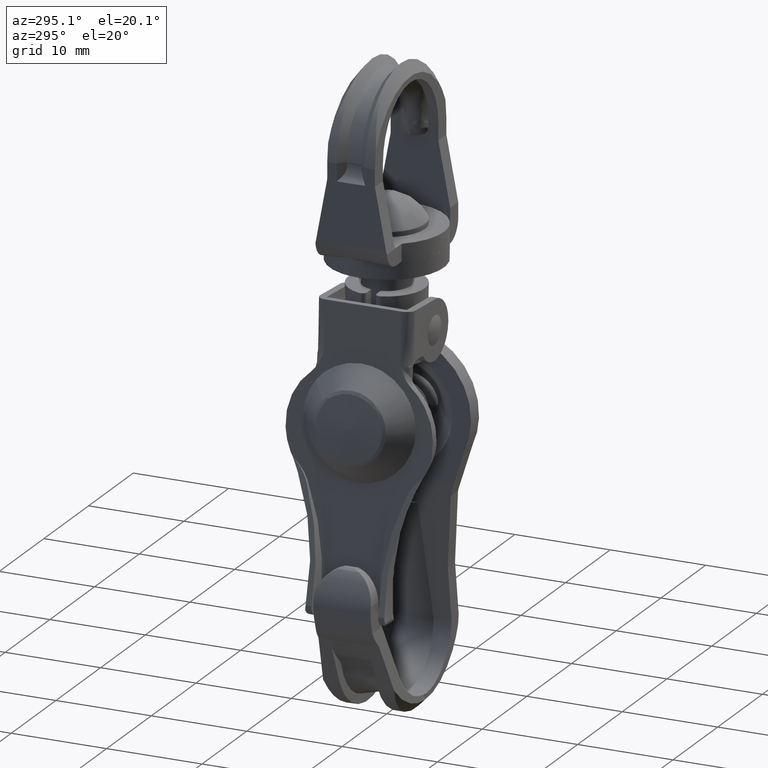
[diagram: clean part render]
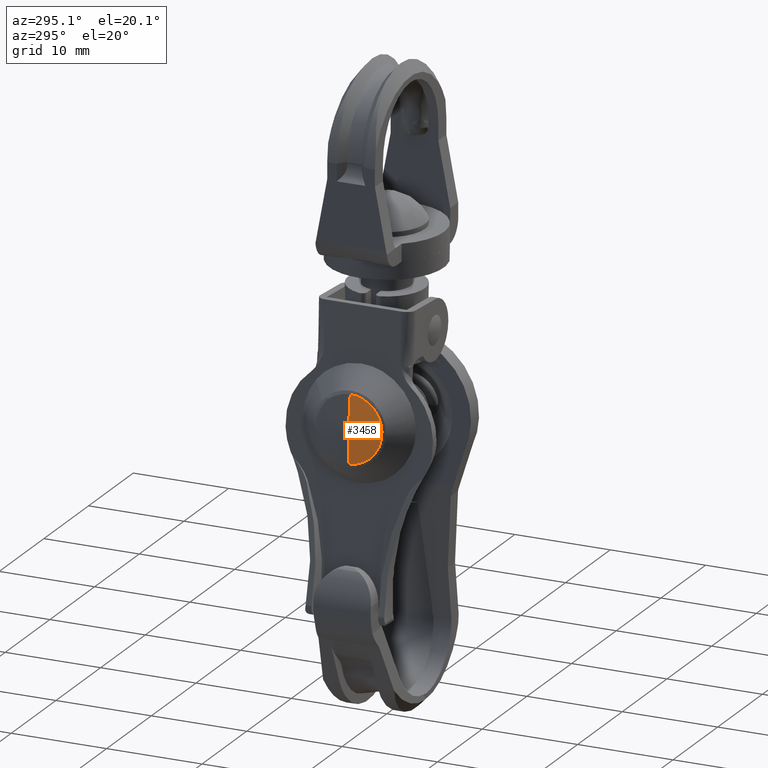
[diagram: same view with one face highlighted and labeled with its STEP entity id]
A machine part, auxiliary view. The second image highlights one B-rep face of the part: STEP entity #3458.
In plain terms, the highlighted face is a freeform B-spline surface patch.
Its self-contained STEP definition (entity closure, byte-faithful):
#2493=CARTESIAN_POINT('',(-7.835021574804739,-1.404637E-016,-11.982552503516050));
#2494=VERTEX_POINT('',#2493);
#2525=CARTESIAN_POINT('',(-7.835021574384678,-2.595404277429626,-6.282185410900057));
#2526=VERTEX_POINT('',#2525);
#2535=CARTESIAN_POINT('',(-7.835021574804739,-1.404637E-016,-11.982552503516050));
#2536=CARTESIAN_POINT('',(-7.835021574828568,-0.348419008680220,-11.982706011859330));
#2537=CARTESIAN_POINT('',(-7.835021574862766,-1.004142779470950,-11.882098519880619));
#2538=CARTESIAN_POINT('',(-7.835021574878999,-1.846992030074514,-11.487628665422870));
#2539=CARTESIAN_POINT('',(-7.835021574868442,-2.436747484635057,-11.002838982162400));
#2540=CARTESIAN_POINT('',(-7.835021574839749,-2.918879328116014,-10.414348578139450));
#2541=CARTESIAN_POINT('',(-7.835021574798509,-3.219707355684711,-9.825008911454040));
#2542=CARTESIAN_POINT('',(-7.835021574742166,-3.398163784062164,-9.170841124201125));
#2543=CARTESIAN_POINT('',(-7.835021574688274,-3.456767600827269,-8.618366553153408));
#2544=CARTESIAN_POINT('',(-7.835021574623317,-3.418557368897708,-8.023306265152964));
#2545=CARTESIAN_POINT('',(-7.835021574560328,-3.294585609612724,-7.502874426334744));
#2546=CARTESIAN_POINT('',(-7.835021574479642,-3.047357665422870,-6.894035753970834));
#2547=CARTESIAN_POINT('',(-7.835021574422758,-2.797337360564127,-6.513988240661466));
#2548=CARTESIAN_POINT('',(-7.835021574384678,-2.595404277429626,-6.282185410900057));
#2549=B_SPLINE_CURVE_WITH_KNOTS('',3,(#2535,#2536,#2537,#2538,#2539,#2540,#2541,#2542,#2543,#2544,#2545,#2546,#2547,#2548),.UNSPECIFIED.,.F.,.U.,(4,1,1,1,1,1,1,1,1,1,1,4),(0.000000097591319,1.045213756927095,1.967506774774630,2.766825270761126,3.320176826878755,4.242391563046670,4.734279134463236,5.349155795290306,5.902517313344400,6.517378208643962,6.947781837420082,7.870021699033574),.UNSPECIFIED.);
#2550=EDGE_CURVE('',#2494,#2526,#2549,.T.);
#2572=CARTESIAN_POINT('',(-7.835021574804739,1.404637E-016,-5.100485496483945));
#2573=VERTEX_POINT('',#2572);
#2583=CARTESIAN_POINT('',(-7.835021574384678,-2.595404277429626,-6.282185410900057));
#2584=CARTESIAN_POINT('',(-7.835021574442168,-2.454637023991371,-6.120468090337438));
#2585=CARTESIAN_POINT('',(-7.835021574566612,-2.087104884099259,-5.770347986868331));
#2586=CARTESIAN_POINT('',(-7.835021574696578,-1.478288668543498,-5.404783425585706));
#2587=CARTESIAN_POINT('',(-7.835021574784340,-0.750392185583337,-5.157861613127837));
#2588=CARTESIAN_POINT('',(-7.835021574804751,-0.275669577491491,-5.100419181528926));
#2589=CARTESIAN_POINT('',(-7.835021574804739,1.404637E-016,-5.100485496483945));
#2590=B_SPLINE_CURVE_WITH_KNOTS('',3,(#2583,#2584,#2585,#2586,#2587,#2588,#2589),.UNSPECIFIED.,.F.,.U.,(4,1,1,1,4),(0.000000032344334,0.643217907970867,1.516143418683828,2.113433090952537,2.940430398307693),.UNSPECIFIED.);
#2591=EDGE_CURVE('',#2526,#2573,#2590,.T.);
#2618=CARTESIAN_POINT('',(-8.007081124188366,0.0,-8.541518999999999));
#2619=VERTEX_POINT('',#2618);
#2620=CARTESIAN_POINT('',(-8.007081124188366,0.0,-8.541518999999999));
#2621=CARTESIAN_POINT('',(-7.835021574804739,1.404637E-016,-5.100485496483945));
#2622=QUASI_UNIFORM_CURVE('',1,(#2620,#2621),.UNSPECIFIED.,.F.,.U.);
#2623=EDGE_CURVE('',#2619,#2573,#2622,.T.);
#2627=CARTESIAN_POINT('',(-8.007081124188366,0.0,-8.541518999999999));
#2628=CARTESIAN_POINT('',(-7.835021574804739,-1.404637E-016,-11.982552503516050));
#2629=QUASI_UNIFORM_CURVE('',1,(#2627,#2628),.UNSPECIFIED.,.F.,.U.);
#2630=EDGE_CURVE('',#2619,#2494,#2629,.T.);
#3434=CARTESIAN_POINT('',(-8.007081124188366,0.0,-8.541518999999999));
#3435=CARTESIAN_POINT('',(-7.830612548420959,0.092383947624020,-12.069519623538261));
#3436=CARTESIAN_POINT('',(-8.007081124188366,0.0,-8.541519000000001));
#3437=CARTESIAN_POINT('',(-7.830612548420958,-3.593013583569963,-12.166025154241384));
#3438=CARTESIAN_POINT('',(-8.007081124188366,0.0,-8.541518999999999));
#3439=CARTESIAN_POINT('',(-7.830612548420959,-3.528672479883332,-8.479925792753228));
#3440=CARTESIAN_POINT('',(-8.007081124188366,0.0,-8.541519000000001));
#3441=CARTESIAN_POINT('',(-7.830612548420958,-3.464331376196700,-4.793826431265074));
#3442=CARTESIAN_POINT('',(-8.007081124188366,0.0,-8.541518999999999));
#3443=CARTESIAN_POINT('',(-7.830612548420959,0.215453115946842,-5.018891692393684));
#3451=(BOUNDED_SURFACE()B_SPLINE_SURFACE(1,2,((#3434,#3436,#3438,#3440,#3442),(#3435,#3437,#3439,#3441,#3443)),.UNSPECIFIED.,.F.,.F.,.U.)B_SPLINE_SURFACE_WITH_KNOTS((2,2),(3,2,3),(0.0,1.0),(0.0,1.0,2.0),.UNSPECIFIED.)GEOMETRIC_REPRESENTATION_ITEM()RATIONAL_B_SPLINE_SURFACE(((1.0,0.691513055782269,1.0,0.691513055782269,1.0),(1.0,0.691513055782269,1.0,0.691513055782269,1.0)))REPRESENTATION_ITEM('')SURFACE());
#3452=ORIENTED_EDGE('',*,*,#2630,.T.);
#3453=ORIENTED_EDGE('',*,*,#2550,.T.);
#3454=ORIENTED_EDGE('',*,*,#2591,.T.);
#3455=ORIENTED_EDGE('',*,*,#2623,.F.);
#3456=EDGE_LOOP('',(#3452,#3453,#3454,#3455));
#3457=FACE_OUTER_BOUND('',#3456,.T.);
#3458=ADVANCED_FACE('',(#3457),#3451,.T.);